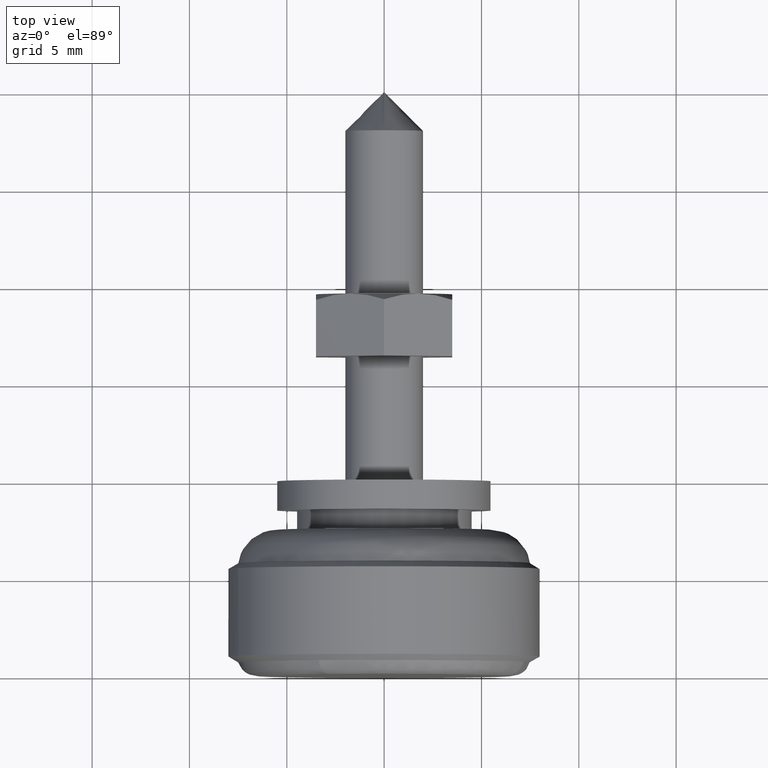
[diagram: clean part render]
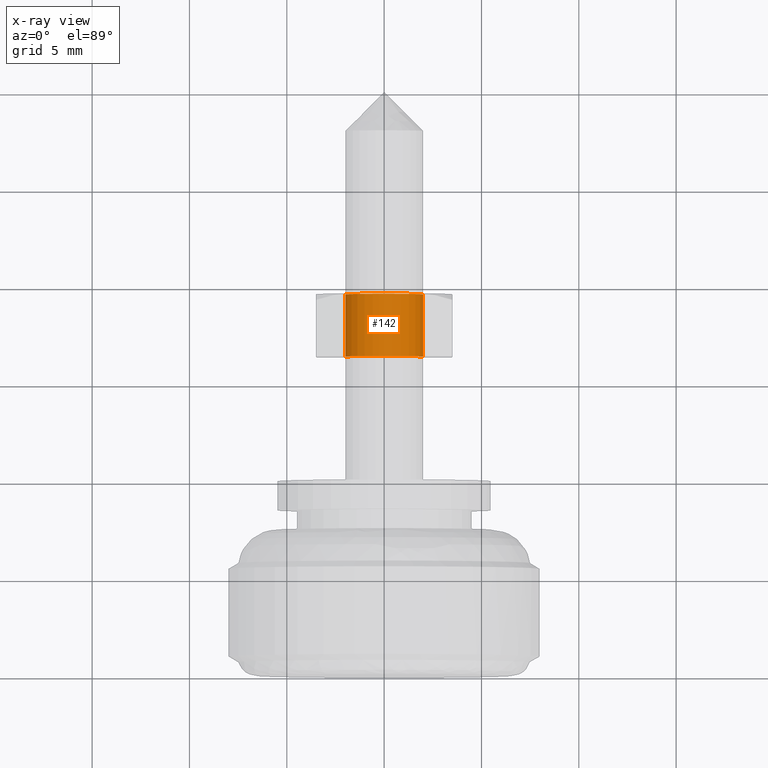
[diagram: x-ray — body ghosted, one internal face saturated and labeled with its STEP entity id]
A machine part, top view, then the same camera in x-ray: the body is ghosted and one INTERNAL B-rep face — a face not visible from any outside direction — is saturated and labeled: STEP entity #142.
In plain terms, the highlighted face is a freeform B-spline surface patch.
Its self-contained STEP definition (entity closure, byte-faithful):
#44=CARTESIAN_POINT('',(9.679795000000002,-1.993834667466255,0.156918191455691));
#45=CARTESIAN_POINT('',(9.679795000000002,-1.836916476010564,2.150752858921946));
#46=CARTESIAN_POINT('',(9.679795000000002,0.156918191455691,1.993834667466255));
#47=CARTESIAN_POINT('',(9.679795000000002,2.150752858921946,1.836916476010564));
#48=CARTESIAN_POINT('',(9.679795000000002,1.993834667466255,-0.156918191455691));
#49=CARTESIAN_POINT('',(6.318005124999999,-1.993834667466255,0.156918191455691));
#50=CARTESIAN_POINT('',(6.318005124999999,-1.836916476010564,2.150752858921946));
#51=CARTESIAN_POINT('',(6.318005124999999,0.156918191455691,1.993834667466255));
#52=CARTESIAN_POINT('',(6.318005124999999,2.150752858921946,1.836916476010564));
#53=CARTESIAN_POINT('',(6.318005124999999,1.993834667466255,-0.156918191455691));
#61=(BOUNDED_SURFACE()B_SPLINE_SURFACE(2,1,((#44,#49),(#45,#50),(#46,#51),(#47,#52),(#48,#53)),.UNSPECIFIED.,.F.,.F.,.U.)B_SPLINE_SURFACE_WITH_KNOTS((3,2,3),(2,2),(0.0,3.313708498984759,6.627416997969518),(0.0,3.361789875000004),.UNSPECIFIED.)GEOMETRIC_REPRESENTATION_ITEM()RATIONAL_B_SPLINE_SURFACE(((1.0,1.0),(0.707106781186548,0.707106781186548),(1.0,1.0),(0.707106781186548,0.707106781186548),(1.0,1.0)))REPRESENTATION_ITEM('')SURFACE());
#62=CARTESIAN_POINT('',(6.400000000000000,0.0,2.0));
#63=VERTEX_POINT('',#62);
#64=CARTESIAN_POINT('',(6.400000000000000,-1.993834667464389,0.156918191479410));
#65=VERTEX_POINT('',#64);
#66=CARTESIAN_POINT('',(6.400000000000000,0.0,2.0));
#67=CARTESIAN_POINT('',(6.399999999999999,-1.848780983272290,2.000000000000000));
#68=CARTESIAN_POINT('',(6.400000000000000,-1.993834667464389,0.156918191479410));
#76=(BOUNDED_CURVE()B_SPLINE_CURVE(2,(#66,#67,#68),.UNSPECIFIED.,.F.,.U.)B_SPLINE_CURVE_WITH_KNOTS((3,3),(0.0,0.236331300628688),.UNSPECIFIED.)CURVE()GEOMETRIC_REPRESENTATION_ITEM()RATIONAL_B_SPLINE_CURVE((1.0,0.723120658609975,0.969723356163304))REPRESENTATION_ITEM(''));
#77=EDGE_CURVE('',#63,#65,#76,.T.);
#78=ORIENTED_EDGE('',*,*,#77,.F.);
#79=CARTESIAN_POINT('',(6.400000000000000,1.993834667464389,-0.156918191479410));
#80=VERTEX_POINT('',#79);
#81=CARTESIAN_POINT('',(6.400000000000000,1.993834667464389,-0.156918191479410));
#82=CARTESIAN_POINT('',(6.400000000000000,2.000000000000000,-0.078580214039169));
#83=CARTESIAN_POINT('',(6.400000000000000,2.0,0.0));
#84=CARTESIAN_POINT('',(6.400000000000000,2.000000000000000,2.000000000000000));
#85=CARTESIAN_POINT('',(6.400000000000000,0.0,2.0));
#93=(BOUNDED_CURVE()B_SPLINE_CURVE(2,(#81,#82,#83,#84,#85),.UNSPECIFIED.,.F.,.U.)B_SPLINE_CURVE_WITH_KNOTS((3,2,3),(0.736331300628688,0.750000000000000,1.0),.UNSPECIFIED.)CURVE()GEOMETRIC_REPRESENTATION_ITEM()RATIONAL_B_SPLINE_CURVE((0.969723356163304,0.983986122576572,1.0,0.707106781186548,1.0))REPRESENTATION_ITEM(''));
#94=EDGE_CURVE('',#80,#63,#93,.T.);
#95=ORIENTED_EDGE('',*,*,#94,.F.);
#96=CARTESIAN_POINT('',(9.599799999999998,1.993834667464389,-0.156918191479410));
#97=VERTEX_POINT('',#96);
#98=CARTESIAN_POINT('',(9.599799999999998,1.993834667464389,-0.156918191479410));
#99=CARTESIAN_POINT('',(6.400000000000000,1.993834667464389,-0.156918191479410));
#100=QUASI_UNIFORM_CURVE('',1,(#98,#99),.UNSPECIFIED.,.F.,.U.);
#101=EDGE_CURVE('',#97,#80,#100,.T.);
#102=ORIENTED_EDGE('',*,*,#101,.F.);
#103=CARTESIAN_POINT('',(9.599800000000000,0.0,2.0));
#104=VERTEX_POINT('',#103);
#105=CARTESIAN_POINT('',(9.599799999999998,1.993834667464389,-0.156918191479410));
#106=CARTESIAN_POINT('',(9.599800000000000,2.000000000000000,-0.078580214039169));
#107=CARTESIAN_POINT('',(9.599800000000000,2.0,0.0));
#108=CARTESIAN_POINT('',(9.599800000000000,2.000000000000000,2.000000000000000));
#109=CARTESIAN_POINT('',(9.599800000000000,0.0,2.0));
#117=(BOUNDED_CURVE()B_SPLINE_CURVE(2,(#105,#106,#107,#108,#109),.UNSPECIFIED.,.F.,.U.)B_SPLINE_CURVE_WITH_KNOTS((3,2,3),(0.736331300628688,0.750000000000000,1.0),.UNSPECIFIED.)CURVE()GEOMETRIC_REPRESENTATION_ITEM()RATIONAL_B_SPLINE_CURVE((0.969723356163304,0.983986122576572,1.0,0.707106781186548,1.0))REPRESENTATION_ITEM(''));
#118=EDGE_CURVE('',#97,#104,#117,.T.);
#119=ORIENTED_EDGE('',*,*,#118,.T.);
#120=CARTESIAN_POINT('',(9.599799999999998,-1.993834667464389,0.156918191479410));
#121=VERTEX_POINT('',#120);
#122=CARTESIAN_POINT('',(9.599800000000000,0.0,2.0));
#123=CARTESIAN_POINT('',(9.599800000000000,-1.848780983272290,1.999999999999999));
#124=CARTESIAN_POINT('',(9.599799999999998,-1.993834667464389,0.156918191479410));
#132=(BOUNDED_CURVE()B_SPLINE_CURVE(2,(#122,#123,#124),.UNSPECIFIED.,.F.,.U.)B_SPLINE_CURVE_WITH_KNOTS((3,3),(0.0,0.236331300628688),.UNSPECIFIED.)CURVE()GEOMETRIC_REPRESENTATION_ITEM()RATIONAL_B_SPLINE_CURVE((1.0,0.723120658609975,0.969723356163304))REPRESENTATION_ITEM(''));
#133=EDGE_CURVE('',#104,#121,#132,.T.);
#134=ORIENTED_EDGE('',*,*,#133,.T.);
#135=CARTESIAN_POINT('',(9.599799999999998,-1.993834667464389,0.156918191479410));
#136=CARTESIAN_POINT('',(6.400000000000000,-1.993834667464389,0.156918191479410));
#137=QUASI_UNIFORM_CURVE('',1,(#135,#136),.UNSPECIFIED.,.F.,.U.);
#138=EDGE_CURVE('',#121,#65,#137,.T.);
#139=ORIENTED_EDGE('',*,*,#138,.T.);
#140=EDGE_LOOP('',(#78,#95,#102,#119,#134,#139));
#141=FACE_OUTER_BOUND('',#140,.T.);
#142=ADVANCED_FACE('',(#141),#61,.F.);